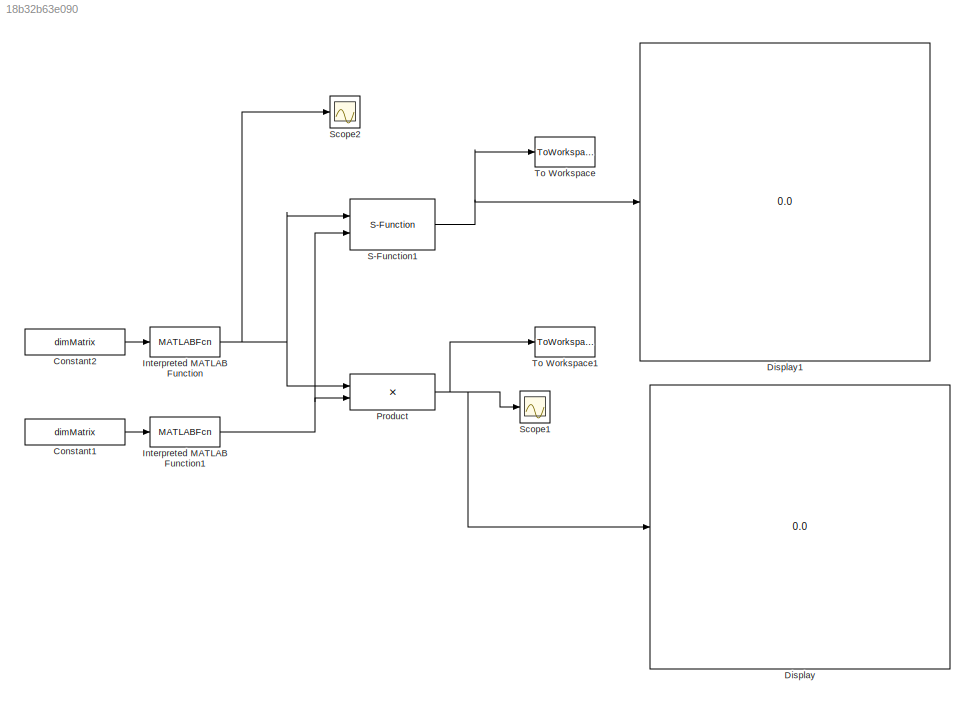
MODEL slx_18b32b63e090
KIND model
CONFIG InitFcn = dim = 80;\ndimMatrix = randn(dim,dim);\n\ndisp( sprintf('\ndimension to test is dim = %i',dim) )
CONFIG StopFcn = disp('');\nlen = size(original.Data);\nvalid = 1;\n\nbiggestError = 0;\n\nfor k=1:len\n  temp = abs(original.Data(:,:,k) - own.Data(:,:,k)) > 1e-10;\n  temp1 = max( max(abs(original.Data(:,:,k) - own.Data(:,:,k))) );\n\n  if( temp1 > biggestError )\n    biggestError = temp1;\n  end\n\n  if( any(any( temp ) ) )\n    error('mismatch during comparison')\n    valid = 0;\n    break;\n  end\nend\n\nif( valid == 1 )\n  disp('...<+95ch>
BLOCK [Constant] Constant1
  Value = dimMatrix
  VectorParams1D = off
BLOCK [Constant] Constant2
  Value = dimMatrix
  VectorParams1D = off
BLOCK [Display] Display
  Decimation = 1
  Format = long
  Ports = [1]
BLOCK [Display] Display1
  Decimation = 1
  Format = long
  Ports = [1]
BLOCK [MATLABFcn] Interpreted MATLAB Function
  MATLABFcn = randn(dim,dim)
  Output1D = off
  Ports = [1, 1]
BLOCK [MATLABFcn] Interpreted MATLAB Function1
  MATLABFcn = randn(dim,dim)
  Output1D = off
  Ports = [1, 1]
BLOCK [Product] Product
  InputSameDT = off
  Multiplication = Matrix(*)
  OutDataTypeStr = Inherit: Inherit via internal rule
  Ports = [2, 1]
  RndMeth = Floor
  SaturateOnIntegerOverflow = off
BLOCK [S-Function] S-Function1
  EnableBusSupport = off
  FunctionName = multMatrix
  Ports = [2, 1]
BLOCK [Scope] Scope1
  DataFormat = StructureWithTime
  Floating = off
  NumInputPorts = 1
  Ports = [1]
  SampleTime = 0
  SaveName = ScopeData1
  ShowLegends = off
BLOCK [Scope] Scope2
  DataFormat = StructureWithTime
  Floating = off
  NumInputPorts = 1
  Ports = [1]
  SampleTime = 0
  ShowLegends = off
BLOCK [ToWorkspace] To Workspace
  MaxDataPoints = inf
  Ports = [1]
  SampleTime = -1
  SaveFormat = Timeseries
  VariableName = own
BLOCK [ToWorkspace] To Workspace1
  MaxDataPoints = inf
  Ports = [1]
  SampleTime = -1
  SaveFormat = Timeseries
  VariableName = original
LINE Constant1:1 -> Interpreted MATLAB Function1:1
LINE Constant2:1 -> Interpreted MATLAB Function:1
NET Interpreted MATLAB Function1:1 -> Product:2, S-Function1:2
NET Interpreted MATLAB Function:1 -> Product:1, S-Function1:1, Scope2:1
NET Product:1 -> Display:1, Scope1:1, To Workspace1:1
NET S-Function1:1 -> Display1:1, To Workspace:1
note: NET lines group one-source signal fan-out (src -> all destinations, sorted); 1:1 wires keep LINE
